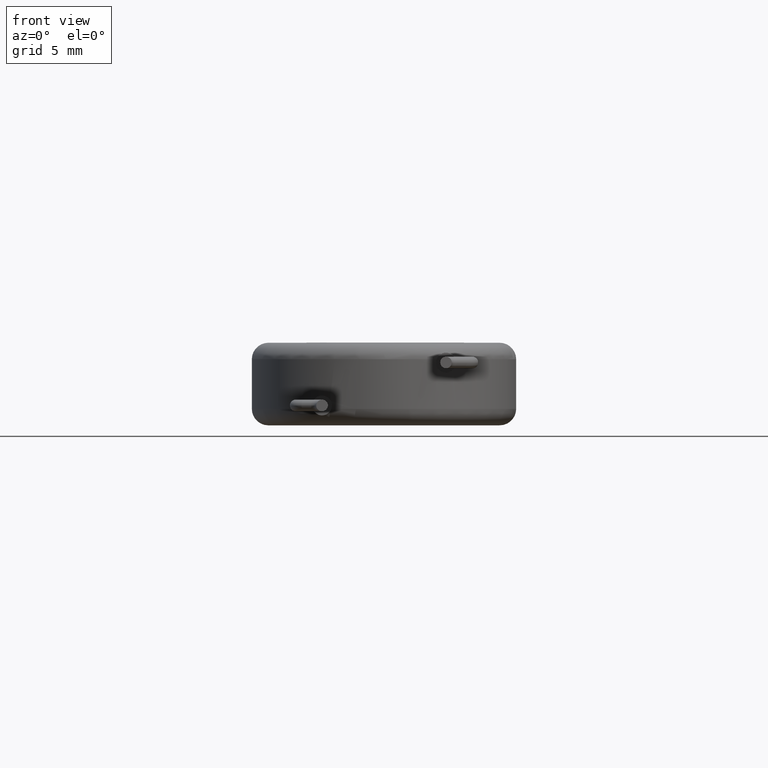
[diagram: clean part render]
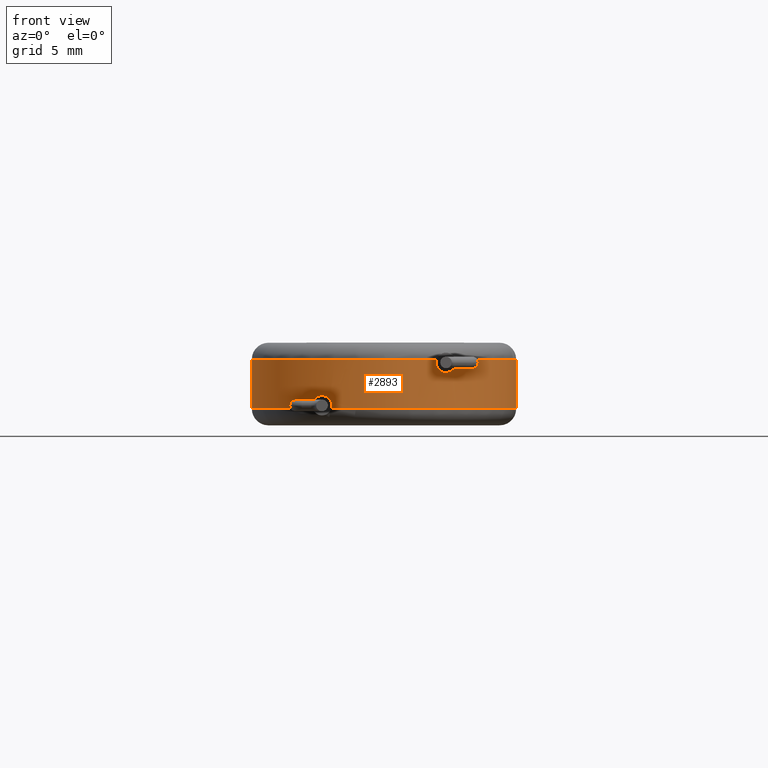
[diagram: same view with one face highlighted and labeled with its STEP entity id]
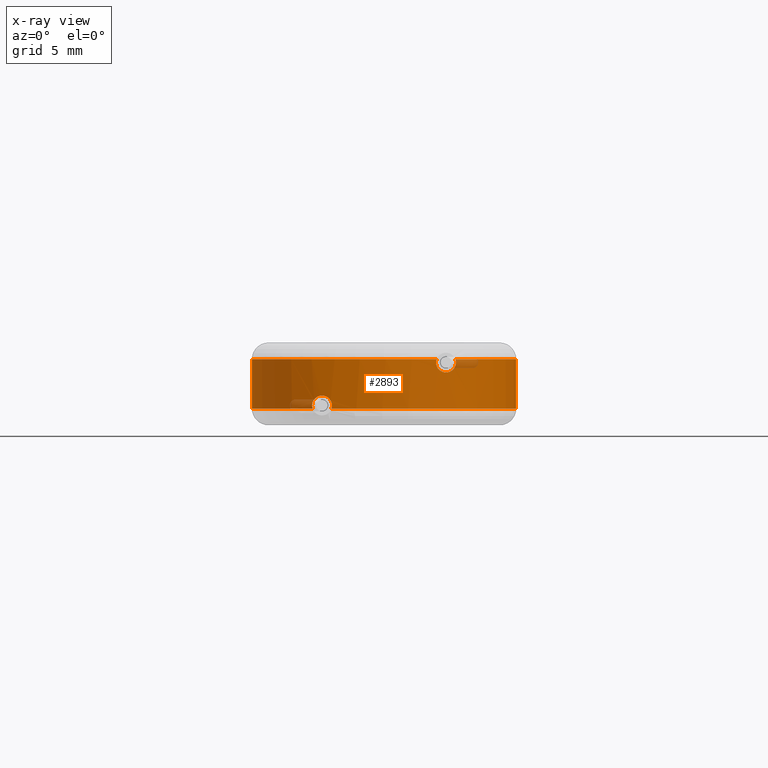
[diagram: x-ray of the same camera — body ghosted, the highlighted face saturated]
A machine part, front view. The second image highlights one B-rep face of the part: STEP entity #2893.
The next image is the same camera in x-ray: the body ghosted, the highlighted face saturated — about 3% of this face is hidden behind the body in this view.
In plain terms, the highlighted cylindrical surface (partial cylindrical patch) has radius 8 mm, axis along (-0, -0, -1).
Its self-contained STEP definition (entity closure, byte-faithful):
#32 = CIRCLE ( 'NONE', #3165, 8.000000000000000000 ) ;
#38 = EDGE_CURVE ( 'NONE', #1159, #1608, #2098, .T. ) ;
#60 = EDGE_CURVE ( 'NONE', #4250, #315, #2317, .T. ) ;
#132 = ORIENTED_EDGE ( 'NONE', *, *, #3277, .T. ) ;
#151 = CARTESIAN_POINT ( 'NONE',  ( -3.184314575050759988, -7.338946837736277651, 1.000000000000000666 ) ) ;
#178 = CARTESIAN_POINT ( 'NONE',  ( 3.184314575050757323, -7.338946837736279427, 3.999999999999999112 ) ) ;
#261 = DIRECTION ( 'NONE',  ( 0.000000000000000000, 0.000000000000000000, 1.000000000000000000 ) ) ;
#293 = ORIENTED_EDGE ( 'NONE', *, *, #38, .T. ) ;
#315 = VERTEX_POINT ( 'NONE', #178 ) ;
#331 = CARTESIAN_POINT ( 'NONE',  ( -3.149999999998098321, -7.353740544784817423, 1.200000000000808864 ) ) ;
#362 = VERTEX_POINT ( 'NONE', #552 ) ;
#382 = CARTESIAN_POINT ( 'NONE',  ( 3.400115256558833732, -7.241773210145704631, 3.306224857802902761 ) ) ;
#399 = EDGE_CURVE ( 'NONE', #885, #4079, #32, .T. ) ;
#552 = CARTESIAN_POINT ( 'NONE',  ( -4.315685424949236904, -6.736086349868202205, 1.000000000000000000 ) ) ;
#588 = CARTESIAN_POINT ( 'NONE',  ( -4.326767026885236511, -6.728986573310106856, 1.031343503500528058 ) ) ;
#659 = DIRECTION ( 'NONE',  ( 1.000000000000000000, 0.000000000000000000, 0.000000000000000000 ) ) ;
#672 = CARTESIAN_POINT ( 'NONE',  ( -3.149999999998098321, -7.353740544784817423, 1.200000000000808864 ) ) ;
#691 = CARTESIAN_POINT ( 'NONE',  ( -4.349999999999998757, -6.713977956472602315, 1.200000000000000178 ) ) ;
#745 = CARTESIAN_POINT ( 'NONE',  ( -3.149999999998098321, -7.353740544784817423, 1.200000000000808864 ) ) ;
#772 = CARTESIAN_POINT ( 'NONE',  ( 3.149999999999995914, -7.353740544783996747, 3.715331362845718743 ) ) ;
#832 = AXIS2_PLACEMENT_3D ( 'NONE', #1249, #2587, #907 ) ;
#885 = VERTEX_POINT ( 'NONE', #4137 ) ;
#907 = DIRECTION ( 'NONE',  ( -1.000000000000000000, 0.000000000000000000, 0.000000000000000000 ) ) ;
#1013 = CARTESIAN_POINT ( 'NONE',  ( 3.164401286100984034, -7.347557649125066703, 3.934976756480978111 ) ) ;
#1015 = CARTESIAN_POINT ( 'NONE',  ( -4.331708108401238988, -6.725905953880014998, 1.367909751679927233 ) ) ;
#1041 = CARTESIAN_POINT ( 'NONE',  ( -4.219148441945578476, -6.797281779973732618, 1.581844470395612934 ) ) ;
#1111 = CARTESIAN_POINT ( 'NONE',  ( 4.335351143986406974, -6.723449906034317358, 3.936121349347736498 ) ) ;
#1139 = VERTEX_POINT ( 'NONE', #2694 ) ;
#1159 = VERTEX_POINT ( 'NONE', #745 ) ;
#1215 = AXIS2_PLACEMENT_3D ( 'NONE', #3293, #261, #4350 ) ;
#1224 = ORIENTED_EDGE ( 'NONE', *, *, #399, .T. ) ;
#1231 = DIRECTION ( 'NONE',  ( 0.000000000000000000, 0.000000000000000000, 1.000000000000000000 ) ) ;
#1238 = B_SPLINE_CURVE_WITH_KNOTS ( 'NONE', 3,
 ( #2593, #588, #3899, #3249, #4322, #4271 ),
 .UNSPECIFIED., .F., .F.,
 ( 4, 2, 4 ),
 ( 0.003803319761688444406, 0.003904925609307513361, 0.004006531456926582316 ),
 .UNSPECIFIED. ) ;
#1245 = ORIENTED_EDGE ( 'NONE', *, *, #2434, .T. ) ;
#1249 = CARTESIAN_POINT ( 'NONE',  ( 0.000000000000000000, 0.000000000000000000, 5.000000000000000000 ) ) ;
#1412 = CARTESIAN_POINT ( 'NONE',  ( 3.149999999999995470, -7.353740544783995858, 3.799999999999999822 ) ) ;
#1413 = CARTESIAN_POINT ( 'NONE',  ( 0.000000000000000000, 0.000000000000000000, 4.000000000000000000 ) ) ;
#1449 = CARTESIAN_POINT ( 'NONE',  ( 8.000000000000000000, 9.797174393178825657E-16, 5.000000000000000000 ) ) ;
#1450 = CARTESIAN_POINT ( 'NONE',  ( 4.219040350395034444, -6.797348879653756448, 3.418026125836643114 ) ) ;
#1466 = CYLINDRICAL_SURFACE ( 'NONE', #832, 8.000000000000000000 ) ;
#1504 = AXIS2_PLACEMENT_3D ( 'NONE', #1413, #1516, #4315 ) ;
#1516 = DIRECTION ( 'NONE',  ( -0.000000000000000000, -0.000000000000000000, -1.000000000000000000 ) ) ;
#1601 = CARTESIAN_POINT ( 'NONE',  ( 3.149999999999995470, -7.353740544783995858, 3.799999999999999822 ) ) ;
#1608 = VERTEX_POINT ( 'NONE', #2517 ) ;
#1633 = AXIS2_PLACEMENT_3D ( 'NONE', #1887, #1231, #3947 ) ;
#1670 = CARTESIAN_POINT ( 'NONE',  ( 4.350000000000002309, -6.713977956472598763, 3.799999999999999822 ) ) ;
#1820 = B_SPLINE_CURVE_WITH_KNOTS ( 'NONE', 3,
 ( #691, #4012, #1015, #4340, #1041, #2347, #2405, #2013, #4358, #3052, #2318, #2699, #3732, #672 ),
 .UNSPECIFIED., .F., .F.,
 ( 4, 2, 2, 2, 2, 2, 4 ),
 ( 2.168404344971008868E-19, 0.0002506017995122359655, 0.0005012035990244717142, 0.001002407198048940393, 0.001503610797073410372, 0.001754212596585645037, 0.002004814396097879918 ),
 .UNSPECIFIED. ) ;
#1832 = CARTESIAN_POINT ( 'NONE',  ( 4.326788885907756566, -6.728972568640306129, 3.968594669846372547 ) ) ;
#1887 = CARTESIAN_POINT ( 'NONE',  ( 0.000000000000000000, 0.000000000000000000, 1.000000000000000000 ) ) ;
#1951 = CARTESIAN_POINT ( 'NONE',  ( 0.000000000000000000, 0.000000000000000000, 4.000000000000000000 ) ) ;
#1972 = ORIENTED_EDGE ( 'NONE', *, *, #3304, .T. ) ;
#1991 = B_SPLINE_CURVE_WITH_KNOTS ( 'NONE', 3,
 ( #4178, #2101, #2166, #3454, #1450, #3136, #2429, #2784, #2484, #3806, #382, #3826, #2827, #2147, #772, #1412 ),
 .UNSPECIFIED., .F., .F.,
 ( 4, 2, 2, 2, 2, 2, 2, 4 ),
 ( 0.002004983746673259792, 0.002255268061166968568, 0.002505552375660677344, 0.003006121004648095330, 0.003256405319141804540, 0.003506689633635513316, 0.003756973948129222092, 0.004007258262622930868 ),
 .UNSPECIFIED. ) ;
#2013 = CARTESIAN_POINT ( 'NONE',  ( -3.609855067118787009, -7.141247076767736957, 1.802116322964066431 ) ) ;
#2015 = CARTESIAN_POINT ( 'NONE',  ( 8.000000000000000000, 9.797174393178825657E-16, 1.000000000000000000 ) ) ;
#2021 = CARTESIAN_POINT ( 'NONE',  ( -3.152872553749318740, -7.352512085166610589, 1.132175821565262863 ) ) ;
#2098 = B_SPLINE_CURVE_WITH_KNOTS ( 'NONE', 3,
 ( #331, #3057, #2021, #3202, #2463, #151 ),
 .UNSPECIFIED., .F., .F.,
 ( 4, 2, 4 ),
 ( 0.002004814396097879918, 0.002106499840762925818, 0.002208185285427971285 ),
 .UNSPECIFIED. ) ;
#2101 = CARTESIAN_POINT ( 'NONE',  ( 4.350000000000008527, -6.713977956473017095, 3.716492891863420134 ) ) ;
#2110 = CARTESIAN_POINT ( 'NONE',  ( 4.315685424949240456, -6.736086349868201317, 4.000000000000000000 ) ) ;
#2129 = FACE_OUTER_BOUND ( 'NONE', #2969, .T. ) ;
#2147 = CARTESIAN_POINT ( 'NONE',  ( 3.168423678447447323, -7.345911630502282463, 3.631147719119175665 ) ) ;
#2166 = CARTESIAN_POINT ( 'NONE',  ( 4.331961691166521078, -6.725743615195297842, 3.632757602187801638 ) ) ;
#2179 = CARTESIAN_POINT ( 'NONE',  ( 4.350000000000007638, -6.713977956473017095, 3.834153986586640528 ) ) ;
#2189 = VECTOR ( 'NONE', #3444, 1000.000000000000000 ) ;
#2213 = VERTEX_POINT ( 'NONE', #1670 ) ;
#2301 = CARTESIAN_POINT ( 'NONE',  ( 4.315685424949240456, -6.736086349868201317, 4.000000000000000000 ) ) ;
#2309 = ORIENTED_EDGE ( 'NONE', *, *, #2859, .T. ) ;
#2317 = B_SPLINE_CURVE_WITH_KNOTS ( 'NONE', 3,
 ( #1601, #3996, #2953, #1013, #4386, #3317 ),
 .UNSPECIFIED., .F., .F.,
 ( 4, 2, 4 ),
 ( 0.000000000000000000, 0.0001017540890911606253, 0.0002035081781823212506 ),
 .UNSPECIFIED. ) ;
#2318 = CARTESIAN_POINT ( 'NONE',  ( -3.235449931991675410, -7.316640397816577490, 1.519671998373157473 ) ) ;
#2336 = ORIENTED_EDGE ( 'NONE', *, *, #4343, .T. ) ;
#2347 = CARTESIAN_POINT ( 'NONE',  ( -4.052083183426532287, -6.899103895487479932, 1.740710265204302498 ) ) ;
#2405 = CARTESIAN_POINT ( 'NONE',  ( -3.907713513007903483, -6.982709969438969821, 1.797755063890514871 ) ) ;
#2412 = CIRCLE ( 'NONE', #1633, 8.000000000000000000 ) ;
#2429 = CARTESIAN_POINT ( 'NONE',  ( 3.906051817439009533, -6.983592952849338786, 3.202234045599337886 ) ) ;
#2434 = EDGE_CURVE ( 'NONE', #2862, #3958, #3489, .T. ) ;
#2463 = CARTESIAN_POINT ( 'NONE',  ( -3.173098892935792392, -7.343813238981367952, 1.031722739515862131 ) ) ;
#2484 = CARTESIAN_POINT ( 'NONE',  ( 3.609787063560838227, -7.139724650609958090, 3.211732211529580105 ) ) ;
#2517 = CARTESIAN_POINT ( 'NONE',  ( -3.184314575050759988, -7.338946837736277651, 1.000000000000000666 ) ) ;
#2555 = CIRCLE ( 'NONE', #1504, 8.000000000000000000 ) ;
#2563 = CARTESIAN_POINT ( 'NONE',  ( -8.000000000000000000, 0.000000000000000000, 1.000000000000000000 ) ) ;
#2587 = DIRECTION ( 'NONE',  ( -0.000000000000000000, -0.000000000000000000, -1.000000000000000000 ) ) ;
#2593 = CARTESIAN_POINT ( 'NONE',  ( -4.315685424949236904, -6.736086349868202205, 1.000000000000000000 ) ) ;
#2596 = CARTESIAN_POINT ( 'NONE',  ( 4.350000000000002309, -6.713977956472598763, 3.799999999999999822 ) ) ;
#2682 = ORIENTED_EDGE ( 'NONE', *, *, #4056, .T. ) ;
#2694 = CARTESIAN_POINT ( 'NONE',  ( -4.349999999999998757, -6.713977956472602315, 1.200000000000000178 ) ) ;
#2699 = CARTESIAN_POINT ( 'NONE',  ( -3.167783774538083907, -7.346190096312488649, 1.367260951330963259 ) ) ;
#2703 = ORIENTED_EDGE ( 'NONE', *, *, #3889, .F. ) ;
#2756 = EDGE_CURVE ( 'NONE', #1139, #1159, #1820, .T. ) ;
#2783 = DIRECTION ( 'NONE',  ( -0.000000000000000000, -0.000000000000000000, -1.000000000000000000 ) ) ;
#2784 = CARTESIAN_POINT ( 'NONE',  ( 3.685232652061118497, -7.101127595888133470, 3.198980643296236881 ) ) ;
#2810 = CARTESIAN_POINT ( 'NONE',  ( 4.347011853881830312, -6.715916625660861783, 3.868860945673314067 ) ) ;
#2827 = CARTESIAN_POINT ( 'NONE',  ( 3.235172295686865596, -7.316760656637289806, 3.481104177793243881 ) ) ;
#2859 = EDGE_CURVE ( 'NONE', #2213, #4250, #1991, .T. ) ;
#2862 = VERTEX_POINT ( 'NONE', #3436 ) ;
#2893 = ADVANCED_FACE ( 'NONE', ( #2129 ), #1466, .T. ) ;
#2953 = CARTESIAN_POINT ( 'NONE',  ( 3.152939806028197012, -7.352483219039450901, 3.868291311926616238 ) ) ;
#2969 = EDGE_LOOP ( 'NONE', ( #2703, #1224, #2682, #2309, #4310, #2336, #1245, #1972, #132, #3783, #293, #3211 ) ) ;
#3052 = CARTESIAN_POINT ( 'NONE',  ( -3.283633788074932447, -7.295334543200422850, 1.585849304739553434 ) ) ;
#3057 = CARTESIAN_POINT ( 'NONE',  ( -3.149999999999935962, -7.353740544784160171, 1.165980242817186596 ) ) ;
#3136 = CARTESIAN_POINT ( 'NONE',  ( 4.051971529349843948, -6.899169501128684878, 3.259236873640270815 ) ) ;
#3165 = AXIS2_PLACEMENT_3D ( 'NONE', #1951, #4065, #659 ) ;
#3202 = CARTESIAN_POINT ( 'NONE',  ( -3.164392242693210733, -7.347561570826733224, 1.065000515451646868 ) ) ;
#3211 = ORIENTED_EDGE ( 'NONE', *, *, #4265, .T. ) ;
#3249 = CARTESIAN_POINT ( 'NONE',  ( -4.347049724096947010, -6.715892072268453639, 1.131497417971580655 ) ) ;
#3277 = EDGE_CURVE ( 'NONE', #362, #1139, #1238, .T. ) ;
#3293 = CARTESIAN_POINT ( 'NONE',  ( 0.000000000000000000, 0.000000000000000000, 1.000000000000000000 ) ) ;
#3304 = EDGE_CURVE ( 'NONE', #3958, #362, #2412, .T. ) ;
#3317 = CARTESIAN_POINT ( 'NONE',  ( 3.184314575050757323, -7.338946837736279427, 3.999999999999999112 ) ) ;
#3368 = B_SPLINE_CURVE_WITH_KNOTS ( 'NONE', 3,
 ( #2110, #1832, #1111, #2810, #2179, #2596 ),
 .UNSPECIFIED., .F., .F.,
 ( 4, 2, 4 ),
 ( 0.001800253698877073106, 0.001902618722775166558, 0.002004983746673259792 ),
 .UNSPECIFIED. ) ;
#3423 = VERTEX_POINT ( 'NONE', #2015 ) ;
#3436 = CARTESIAN_POINT ( 'NONE',  ( -8.000000000000000000, 0.000000000000000000, 4.000000000000000000 ) ) ;
#3444 = DIRECTION ( 'NONE',  ( -0.000000000000000000, -0.000000000000000000, -1.000000000000000000 ) ) ;
#3454 = CARTESIAN_POINT ( 'NONE',  ( 4.266218862879832763, -6.767635915523447565, 3.483507479996095224 ) ) ;
#3472 = VECTOR ( 'NONE', #2783, 1000.000000000000000 ) ;
#3489 = LINE ( 'NONE', #4126, #2189 ) ;
#3732 = CARTESIAN_POINT ( 'NONE',  ( -3.150000000000123368, -7.353740544784080235, 1.283841029533763667 ) ) ;
#3783 = ORIENTED_EDGE ( 'NONE', *, *, #2756, .T. ) ;
#3806 = CARTESIAN_POINT ( 'NONE',  ( 3.468204482143286249, -7.209562289128232493, 3.264920618400748875 ) ) ;
#3826 = CARTESIAN_POINT ( 'NONE',  ( 3.284290442341324390, -7.295032506809930872, 3.413544526950366365 ) ) ;
#3889 = EDGE_CURVE ( 'NONE', #885, #3423, #4114, .T. ) ;
#3899 = CARTESIAN_POINT ( 'NONE',  ( -4.335455899781722522, -6.723382316303116113, 1.064344678690531953 ) ) ;
#3947 = DIRECTION ( 'NONE',  ( 1.000000000000000000, 0.000000000000000000, 0.000000000000000000 ) ) ;
#3958 = VERTEX_POINT ( 'NONE', #2563 ) ;
#3996 = CARTESIAN_POINT ( 'NONE',  ( 3.149999999999995470, -7.353740544783994970, 3.834422373074603207 ) ) ;
#4012 = CARTESIAN_POINT ( 'NONE',  ( -4.349999999999999645, -6.713977956472602315, 1.284855520912830285 ) ) ;
#4020 = CARTESIAN_POINT ( 'NONE',  ( 3.149999999999995470, -7.353740544783995858, 3.799999999999999822 ) ) ;
#4047 = CIRCLE ( 'NONE', #1215, 8.000000000000000000 ) ;
#4056 = EDGE_CURVE ( 'NONE', #4079, #2213, #3368, .T. ) ;
#4065 = DIRECTION ( 'NONE',  ( -0.000000000000000000, -0.000000000000000000, -1.000000000000000000 ) ) ;
#4079 = VERTEX_POINT ( 'NONE', #2301 ) ;
#4114 = LINE ( 'NONE', #1449, #3472 ) ;
#4126 = CARTESIAN_POINT ( 'NONE',  ( -8.000000000000000000, 0.000000000000000000, 5.000000000000000000 ) ) ;
#4137 = CARTESIAN_POINT ( 'NONE',  ( 8.000000000000000000, 9.797174393178825657E-16, 4.000000000000000000 ) ) ;
#4178 = CARTESIAN_POINT ( 'NONE',  ( 4.350000000000002309, -6.713977956472598763, 3.799999999999999822 ) ) ;
#4250 = VERTEX_POINT ( 'NONE', #4020 ) ;
#4265 = EDGE_CURVE ( 'NONE', #1608, #3423, #4047, .T. ) ;
#4271 = CARTESIAN_POINT ( 'NONE',  ( -4.349999999999998757, -6.713977956472602315, 1.200000000000000178 ) ) ;
#4310 = ORIENTED_EDGE ( 'NONE', *, *, #60, .T. ) ;
#4315 = DIRECTION ( 'NONE',  ( 1.000000000000000000, 0.000000000000000000, 0.000000000000000000 ) ) ;
#4322 = CARTESIAN_POINT ( 'NONE',  ( -4.349999999999998757, -6.713977956472600539, 1.165595549815336973 ) ) ;
#4340 = CARTESIAN_POINT ( 'NONE',  ( -4.266251563878269870, -6.767614323418103872, 1.516326304442427775 ) ) ;
#4343 = EDGE_CURVE ( 'NONE', #315, #2862, #2555, .T. ) ;
#4350 = DIRECTION ( 'NONE',  ( 1.000000000000000000, 0.000000000000000000, 0.000000000000000000 ) ) ;
#4358 = CARTESIAN_POINT ( 'NONE',  ( -3.459368470122321515, -7.214526844743568645, 1.748672791574433782 ) ) ;
#4386 = CARTESIAN_POINT ( 'NONE',  ( 3.173006755223326536, -7.343853216850980026, 3.968016655678367144 ) ) ;